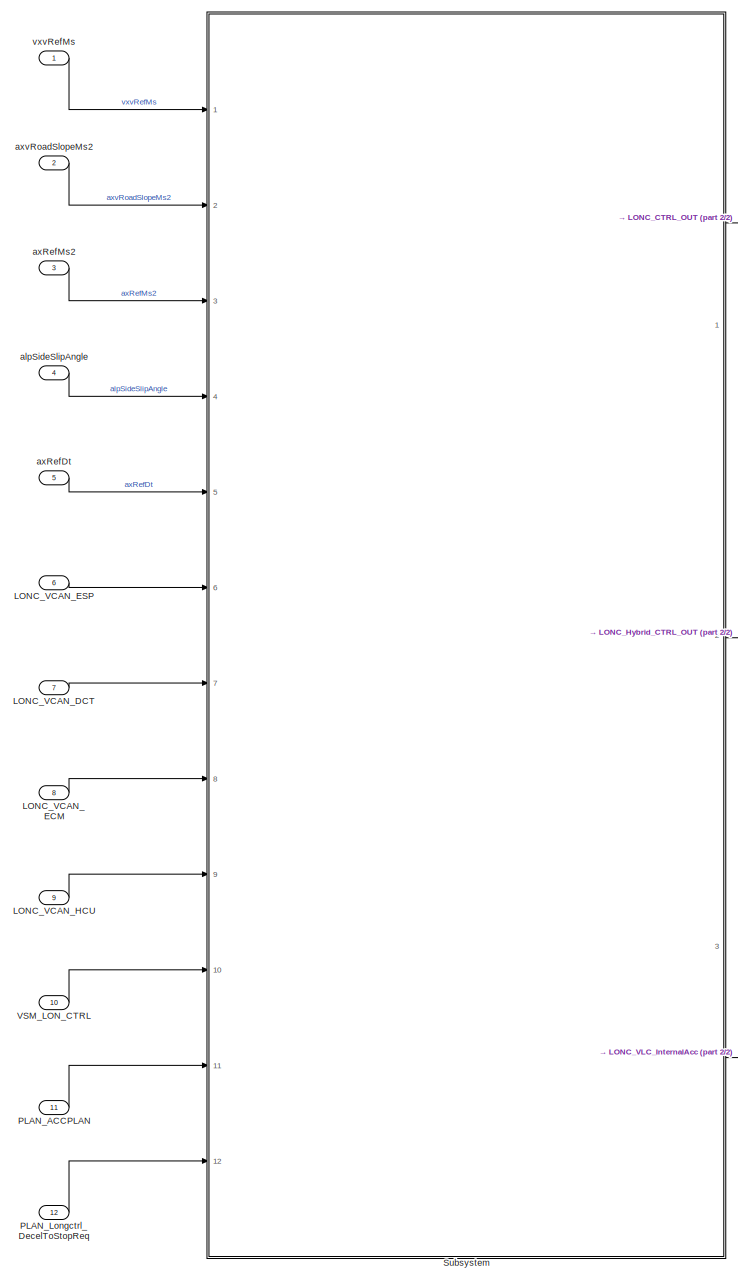
[diagram: root canvas - part 1/2, left side, full height]
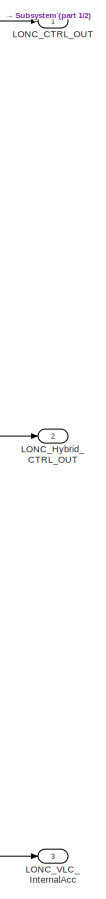
[diagram: root canvas - part 2/2, middle right region]
MODEL slx_cae53988e237
KIND model
CONFIG AbsTol = auto
CONFIG EnableMultiTasking = off
CONFIG FixedStep = auto
CONFIG InitFcn = , if any(exist('rtifpga_mdlclblib', 'file') ~= 0), rtifpga_mdlclblib('Init', bdroot); end,\n, if any(exist('dsmpb_private', 'file') ~= 0), dsmpb_private('dsmpb_mdlclblib', 'Init', bdroot); end,\n
CONFIG MaxStep = auto
CONFIG MinStep = auto
CONFIG PostLoadFcn = if any(exist('dsrtsu_mdlpostloadfcn', 'file') ~= 0), dsrtsu_mdlpostloadfcn('Execute', bdroot); end
CONFIG RelTol = 1e-3
CONFIG SampleTimeConstraint = Unconstrained
CONFIG SolverName = FixedStepAuto
CONFIG StartTime = 0.0
CONFIG StopTime = Inf
BLOCK [Outport] LONC_CTRL_OUT
  BusOutputAsStruct = on
  OutDataTypeStr = Bus: LONC_CTRL_OUT_BUS
  PortDimensions = 1
BLOCK [Outport] LONC_Hybrid_CTRL_OUT
  BusOutputAsStruct = on
  OutDataTypeStr = Bus: LONC_Hybrid_CTRL_OUT_BUS
  Port = 2
  PortDimensions = 1
BLOCK [Inport] LONC_VCAN_DCT
  BusOutputAsStruct = on
  OutDataTypeStr = Bus: VCAN_DCT_MSG_BUS
  Port = 7
  PortDimensions = 1
BLOCK [Inport] LONC_VCAN_ECM
  BusOutputAsStruct = on
  OutDataTypeStr = Bus: VCAN_ECM_MSG_BUS
  Port = 8
  PortDimensions = 1
BLOCK [Inport] LONC_VCAN_ESP
  BusOutputAsStruct = on
  OutDataTypeStr = Bus: VCAN_ESP_MSG_BUS
  Port = 6
  PortDimensions = 1
BLOCK [Inport] LONC_VCAN_HCU
  BusOutputAsStruct = on
  OutDataTypeStr = Bus: VCAN_HCU_MSG_BUS
  Port = 9
  PortDimensions = 1
BLOCK [Outport] LONC_VLC_InternalAcc
  OutDataTypeStr = single
  Port = 3
BLOCK [Inport] PLAN_ACCPLAN
  OutDataTypeStr = Bus: PLAN_ACCPLAN_BUS
  Port = 11
BLOCK [Inport] PLAN_Longctrl_DecelToStopReq
  BusOutputAsStruct = on
  OutDataTypeStr = boolean
  Port = 12
  PortDimensions = 1
BLOCK [SubSystem] Subsystem
  Ports = [12, 3]
  ReferencedSubsystem = PvtSubSys_LONC
  RequestExecContextInheritance = off
BLOCK [Inport] VSM_LON_CTRL
  BusOutputAsStruct = on
  OutDataTypeStr = Bus: VSM_LON_CTRL_BUS
  Port = 10
  PortDimensions = 1
BLOCK [Inport] alpSideSlipAngle
  BusOutputAsStruct = on
  OutDataTypeStr = single
  Port = 4
  PortDimensions = 1
BLOCK [Inport] axRefDt
  BusOutputAsStruct = on
  OutDataTypeStr = single
  Port = 5
  PortDimensions = 1
BLOCK [Inport] axRefMs2
  BusOutputAsStruct = on
  OutDataTypeStr = single
  Port = 3
  PortDimensions = 1
BLOCK [Inport] axvRoadSlopeMs2
  BusOutputAsStruct = on
  OutDataTypeStr = single
  Port = 2
  PortDimensions = 1
BLOCK [Inport] vxvRefMs
  BusOutputAsStruct = on
  OutDataTypeStr = single
  PortDimensions = 1
LINE LONC_VCAN_DCT:1 -> Subsystem:7
LINE LONC_VCAN_ECM:1 -> Subsystem:8
LINE LONC_VCAN_ESP:1 -> Subsystem:6
LINE LONC_VCAN_HCU:1 -> Subsystem:9
LINE PLAN_ACCPLAN:1 -> Subsystem:11
LINE PLAN_Longctrl_DecelToStopReq:1 -> Subsystem:12
LINE Subsystem:1 -> LONC_CTRL_OUT:1
LINE Subsystem:2 -> LONC_Hybrid_CTRL_OUT:1
LINE Subsystem:3 -> LONC_VLC_InternalAcc:1
LINE VSM_LON_CTRL:1 -> Subsystem:10
LINE alpSideSlipAngle:1 -> Subsystem:4
LINE axRefDt:1 -> Subsystem:5
LINE axRefMs2:1 -> Subsystem:3
LINE axvRoadSlopeMs2:1 -> Subsystem:2
LINE vxvRefMs:1 -> Subsystem:1
